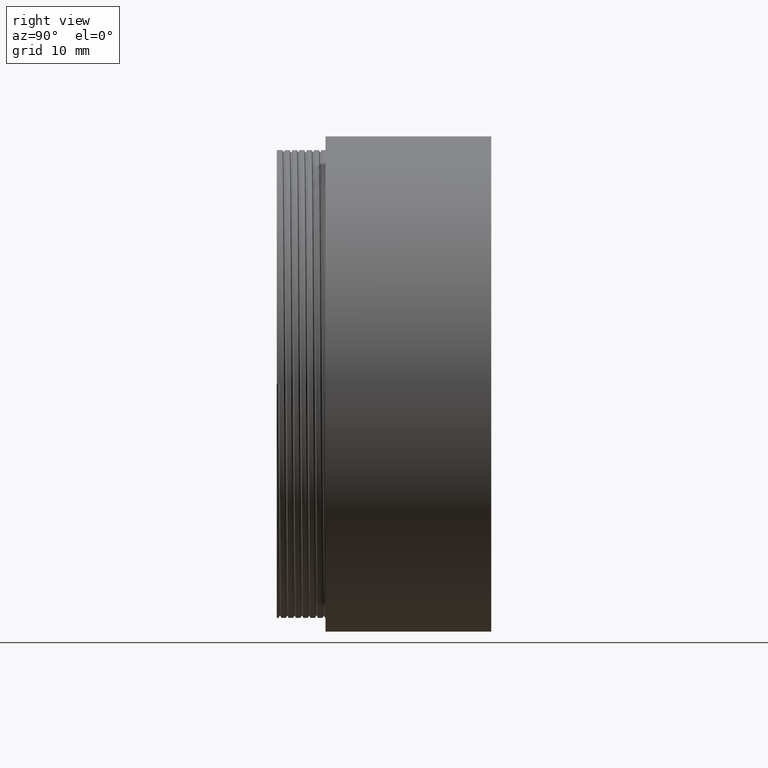
[diagram: clean part render]
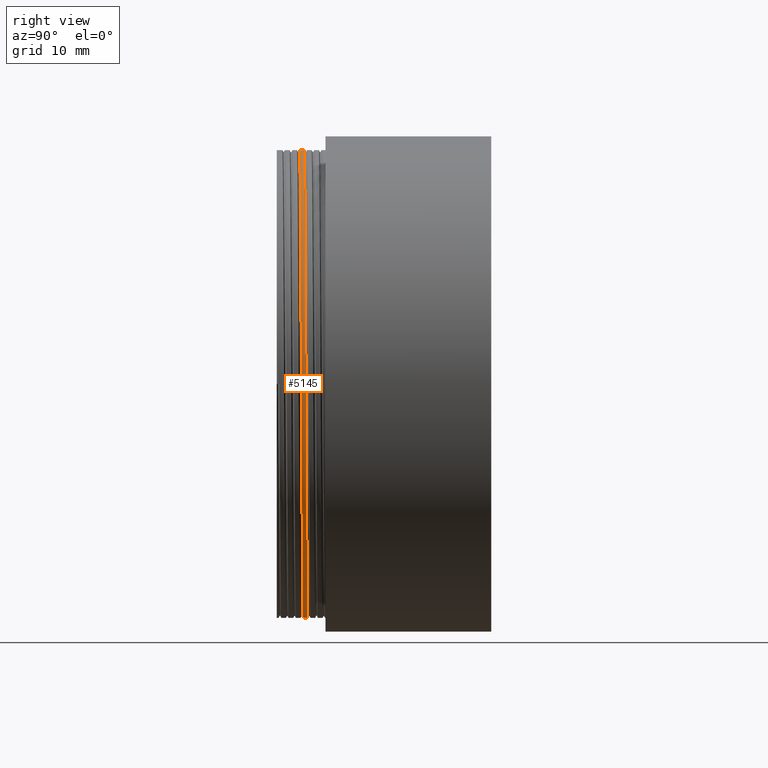
[diagram: same view with one face highlighted and labeled with its STEP entity id]
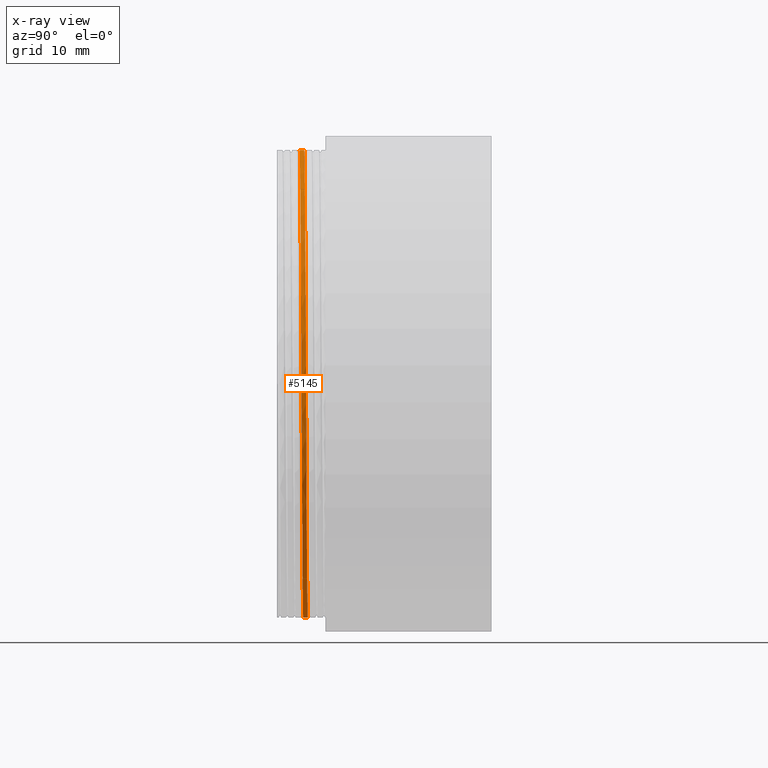
[diagram: x-ray of the same camera — body ghosted, the highlighted face saturated]
A machine part, right view. The second image highlights one B-rep face of the part: STEP entity #5145.
The next image is the same camera in x-ray: the body ghosted, the highlighted face saturated — about 0% of this face is hidden behind the body in this view.
In plain terms, the highlighted cylindrical surface (partial cylindrical patch) has radius 24 mm, axis along (-0, -1, -0).
Its self-contained STEP definition (entity closure, byte-faithful):
#5 = VECTOR ( 'NONE', #3664, 1000.000000000000000 ) ;
#37 = DIRECTION ( 'NONE',  ( 0.000000000000000000, 0.000000000000000000, -1.000000000000000000 ) ) ;
#251 = LINE ( 'NONE', #2472, #5 ) ;
#621 = CARTESIAN_POINT ( 'NONE',  ( 20.55919172111478588, 2.464383911733040389, 12.58763225142351772 ) ) ;
#698 = CARTESIAN_POINT ( 'NONE',  ( 23.56905712016745014, 2.554302141110015079, -4.890395446164568227 ) ) ;
#750 = CARTESIAN_POINT ( 'NONE',  ( 9.941125496954287044, 2.859375000000000444, 23.99999999999999645 ) ) ;
#806 = CARTESIAN_POINT ( 'NONE',  ( 0.4605586820253083080, 2.713140841052593011, -23.99999994912767320 ) ) ;
#1064 = CARTESIAN_POINT ( 'NONE',  ( 4.156221590639141290E-06, 2.341248278087465717, 23.99999999999923617 ) ) ;
#1099 = CARTESIAN_POINT ( 'NONE',  ( 10.10449983847437672, 2.393934930085273027, 21.91716567181018149 ) ) ;
#1279 = CARTESIAN_POINT ( 'NONE',  ( 2.186699837302252369, 2.704875321746263328, -23.90768804247854362 ) ) ;
#1313 = ORIENTED_EDGE ( 'NONE', *, *, #5974, .T. ) ;
#1333 = CARTESIAN_POINT ( 'NONE',  ( 9.941125496954285268, 3.140625000000000444, -23.99999999999999645 ) ) ;
#1352 = CARTESIAN_POINT ( 'NONE',  ( 12.61541959306242866, 2.650806253728044126, -20.44954663491014202 ) ) ;
#1389 = CARTESIAN_POINT ( 'NONE',  ( 2.852732722974660184, 2.701653326626532792, -23.84128208333754984 ) ) ;
#1549 = ORIENTED_EDGE ( 'NONE', *, *, #5528, .F. ) ;
#1897 = CARTESIAN_POINT ( 'NONE',  ( 5.106186588223180500, 2.690586875214482365, -23.46690872989424292 ) ) ;
#2068 = VERTEX_POINT ( 'NONE', #3540 ) ;
#2097 = VERTEX_POINT ( 'NONE', #5167 ) ;
#2181 = CARTESIAN_POINT ( 'NONE',  ( 2.681036266740211893, 2.355559390642455231, 24.00000002860112502 ) ) ;
#2256 = CARTESIAN_POINT ( 'NONE',  ( 16.18132401591821790, 2.430209770448801265, 17.88690728415355480 ) ) ;
#2366 = CARTESIAN_POINT ( 'NONE',  ( 19.56821118010576299, 2.603744131964884190, -13.98400915883232187 ) ) ;
#2401 = CARTESIAN_POINT ( 'NONE',  ( 9.604980127455682748, 2.667474569351532043, -22.01762827374721709 ) ) ;
#2437 = CARTESIAN_POINT ( 'NONE',  ( 23.62757083630091515, 2.506681679322018130, 4.656888158952063428 ) ) ;
#2472 = CARTESIAN_POINT ( 'NONE',  ( 2.939152317953647894E-15, 0.000000000000000000, 24.00000000000000000 ) ) ;
#2492 = CARTESIAN_POINT ( 'NONE',  ( 24.00000000000000000, 3.000000000000000444, 0.000000000000000000 ) ) ;
#2574 = EDGE_CURVE ( 'NONE', #2097, #2068, #5042, .T. ) ;
#2843 = CARTESIAN_POINT ( 'NONE',  ( 21.61712388539269369, 2.475308470143499751, 10.64046406237403275 ) ) ;
#3052 = CARTESIAN_POINT ( 'NONE',  ( 24.07172899635542507, 2.526430097063648184, 0.7075125973628157983 ) ) ;
#3268 = CYLINDRICAL_SURFACE ( 'NONE', #5217, 24.00000000000000000 ) ;
#3374 =( BOUNDED_CURVE ( )  B_SPLINE_CURVE ( 2, ( #5028, #750, #4990, #6440, #2492, #4125, #4092, #1333, #5249 ),
 .UNSPECIFIED., .F., .F. ) 
 B_SPLINE_CURVE_WITH_KNOTS ( ( 3, 2, 2, 2, 3 ),
 ( 0.5357142857142856984, 0.5535714285714286031, 0.5714285714285713969, 0.5892857142857143016, 0.6071428571428570953 ),
 .UNSPECIFIED. ) 
 CURVE ( )  GEOMETRIC_REPRESENTATION_ITEM ( )  RATIONAL_B_SPLINE_CURVE ( ( 1.000000000000000000, 0.9238795325112867385, 1.000000000000000000, 0.9238795325112867385, 1.000000000000000000, 0.9238795325112867385, 1.000000000000000000, 0.9238795325112867385, 1.000000000000000000 ) ) 
 REPRESENTATION_ITEM ( '' )  );
#3386 = CARTESIAN_POINT ( 'NONE',  ( 5.288526059687839620, 2.368584648132205039, 23.54770817271408845 ) ) ;
#3451 = ORIENTED_EDGE ( 'NONE', *, *, #2574, .T. ) ;
#3493 = CARTESIAN_POINT ( 'NONE',  ( 15.69411953658864078, 2.632037239025263542, -18.20349065097602548 ) ) ;
#3540 = CARTESIAN_POINT ( 'NONE',  ( 2.650996461180479727E-06, 2.715312486632693645, -23.99999999999985434 ) ) ;
#3565 = CARTESIAN_POINT ( 'NONE',  ( 18.64647536029523778, 2.611167525243194287, -15.17760281359298880 ) ) ;
#3664 = DIRECTION ( 'NONE',  ( -0.000000000000000000, -1.000000000000000000, -0.000000000000000000 ) ) ;
#3993 = DIRECTION ( 'NONE',  ( -0.000000000000000000, -1.000000000000000000, -0.000000000000000000 ) ) ;
#4041 = CARTESIAN_POINT ( 'NONE',  ( 24.03994062220576211, 2.535954189421246951, -1.223795748646260950 ) ) ;
#4076 = CARTESIAN_POINT ( 'NONE',  ( 23.13051396139139015, 2.563126000441185326, -6.625856550929874800 ) ) ;
#4092 = CARTESIAN_POINT ( 'NONE',  ( 16.97056274847714263, 3.093750000000000444, -16.97056274847714263 ) ) ;
#4109 = CARTESIAN_POINT ( 'NONE',  ( 6.805122038068994073, 2.682042185895733510, -23.03170121501935697 ) ) ;
#4125 = CARTESIAN_POINT ( 'NONE',  ( 23.99999999999999645, 3.046875000000000444, -9.941125496954285268 ) ) ;
#4186 = VECTOR ( 'NONE', #3993, 1000.000000000000000 ) ;
#4471 = CARTESIAN_POINT ( 'NONE',  ( 17.84166362430075381, 2.441834561885690480, 16.21122725273863097 ) ) ;
#4531 = LINE ( 'NONE', #6743, #4186 ) ;
#4573 = ORIENTED_EDGE ( 'NONE', *, *, #6420, .F. ) ;
#4648 = CARTESIAN_POINT ( 'NONE',  ( 16.70938722111957730, 2.625314078773382853, -17.28719321416778953 ) ) ;
#4684 = CARTESIAN_POINT ( 'NONE',  ( 21.22397288781086999, 2.588197112381834586, -11.31416703964508308 ) ) ;
#4686 = VERTEX_POINT ( 'NONE', #5813 ) ;
#4990 = CARTESIAN_POINT ( 'NONE',  ( 16.97056274847713553, 2.906250000000000444, 16.97056274847714619 ) ) ;
#5028 = CARTESIAN_POINT ( 'NONE',  ( -4.408728476930470856E-15, 2.812500000000000444, 24.00000000000000000 ) ) ;
#5042 = B_SPLINE_CURVE_WITH_KNOTS ( 'NONE', 3,
 ( #1064, #2181, #3386, #1099, #5515, #2256, #4471, #621, #2843, #5048, #2437, #3052, #4041, #698, #4076, #6825, #4684, #2366, #3565, #4648, #3493, #6246, #1352, #6862, #2401, #6284, #4109, #1897, #6898, #1389, #1279, #6319, #806, #5769 ),
 .UNSPECIFIED., .F., .F.,
 ( 4, 2, 2, 2, 2, 2, 2, 2, 2, 2, 2, 2, 2, 2, 2, 2, 4 ),
 ( 0.3866447434511786629, 0.3929471146574549101, 0.3992494858637311017, 0.4055518570700073488, 0.4118542282762835405, 0.4181565994825597876, 0.4244589706888360348, 0.4307613418951122819, 0.4370637131013884735, 0.4433660843076647207, 0.4496684555139409678, 0.4559708267202171594, 0.4622731979264933511, 0.4685755691327695982, 0.4748779403390458453, 0.4811803115453220370, 0.4874826827515982841 ),
 .UNSPECIFIED. ) ;
#5044 = DIRECTION ( 'NONE',  ( -0.000000000000000000, -1.000000000000000000, -0.000000000000000000 ) ) ;
#5048 = CARTESIAN_POINT ( 'NONE',  ( 23.15091779964357599, 2.496457353937988177, 6.674917645427126622 ) ) ;
#5145 = ADVANCED_FACE ( 'NONE', ( #5586 ), #3268, .T. ) ;
#5167 = CARTESIAN_POINT ( 'NONE',  ( 4.156221590639141290E-06, 2.341248278087465717, 23.99999999999923617 ) ) ;
#5217 = AXIS2_PLACEMENT_3D ( 'NONE', #6092, #5044, #37 ) ;
#5249 = CARTESIAN_POINT ( 'NONE',  ( 1.469576158976823947E-15, 3.187500000000000444, -24.00000000000000000 ) ) ;
#5515 = CARTESIAN_POINT ( 'NONE',  ( 12.31299138392330228, 2.406259954548592983, 20.74046629850611723 ) ) ;
#5528 = EDGE_CURVE ( 'NONE', #4686, #2068, #4531, .T. ) ;
#5586 = FACE_OUTER_BOUND ( 'NONE', #6696, .T. ) ;
#5604 = VERTEX_POINT ( 'NONE', #7022 ) ;
#5769 = CARTESIAN_POINT ( 'NONE',  ( 2.650996461180479727E-06, 2.715312486632693645, -23.99999999999985434 ) ) ;
#5813 = CARTESIAN_POINT ( 'NONE',  ( 1.469576158976823947E-15, 3.187500000000000444, -24.00000000000000000 ) ) ;
#5974 = EDGE_CURVE ( 'NONE', #5604, #2097, #251, .T. ) ;
#6092 = CARTESIAN_POINT ( 'NONE',  ( 0.000000000000000000, 0.000000000000000000, 0.000000000000000000 ) ) ;
#6246 = CARTESIAN_POINT ( 'NONE',  ( 13.64714050492547059, 2.644783326502591958, -19.78453982147999213 ) ) ;
#6284 = CARTESIAN_POINT ( 'NONE',  ( 7.710403814052551041, 2.677419724723142380, -22.75041254733583074 ) ) ;
#6319 = CARTESIAN_POINT ( 'NONE',  ( 0.9906567488361538443, 2.710619078959292327, -23.98703405844321424 ) ) ;
#6420 = EDGE_CURVE ( 'NONE', #5604, #4686, #3374, .T. ) ;
#6440 = CARTESIAN_POINT ( 'NONE',  ( 23.99999999999999289, 2.953125000000000444, 9.941125496954301255 ) ) ;
#6696 = EDGE_LOOP ( 'NONE', ( #4573, #1313, #3451, #1549 ) ) ;
#6743 = CARTESIAN_POINT ( 'NONE',  ( 0.000000000000000000, 0.000000000000000000, -24.00000000000000000 ) ) ;
#6825 = CARTESIAN_POINT ( 'NONE',  ( 21.95778320143381634, 2.580073486077095524, -9.837601741809502087 ) ) ;
#6862 = CARTESIAN_POINT ( 'NONE',  ( 10.59437382353525869, 2.662151875152512837, -21.56599203305006185 ) ) ;
#6898 = CARTESIAN_POINT ( 'NONE',  ( 4.312424984452675858, 2.694509103360642754, -23.62091882462388881 ) ) ;
#7022 = CARTESIAN_POINT ( 'NONE',  ( -4.408728476930470856E-15, 2.812500000000000444, 24.00000000000000000 ) ) ;